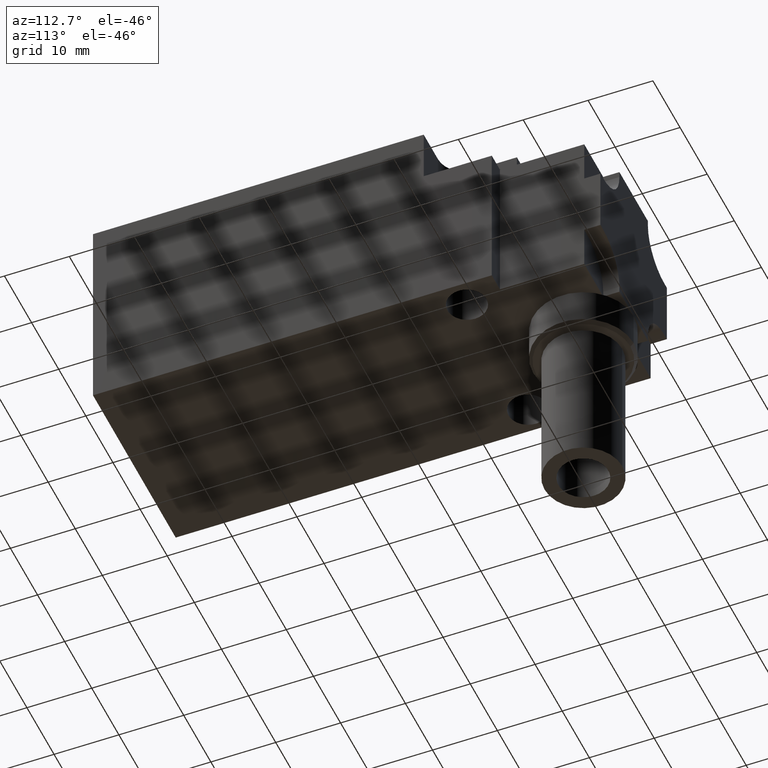
[diagram: clean part render]
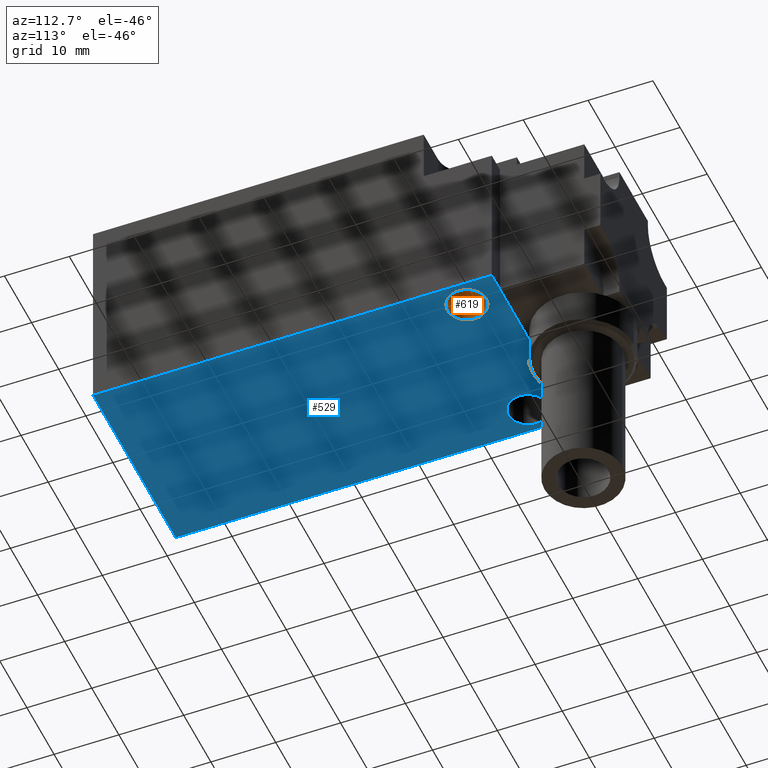
[diagram: same view with the hole feature highlighted: cylindrical wall and planar end face, labeled with their STEP entity ids]
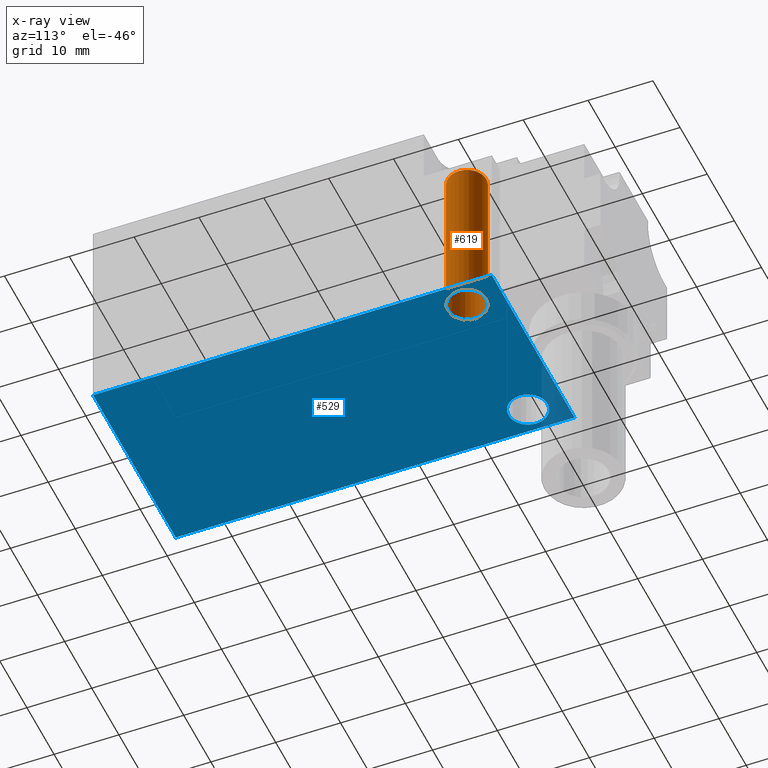
[diagram: x-ray of the same camera — body ghosted, the hole faces saturated]
A machine part, auxiliary view. The highlighted faces form one hole feature of diameter 6 mm: the cylindrical wall (entity #619, orange) and its adjacent planar end face (entity #529, blue) — they share a circular edge in the B-rep.
The next image is the same camera in x-ray (body ghosted, the hole faces saturated) — the bore reads through the body.
Wall:
#509=CARTESIAN_POINT('',(8.249999999966590,-13.249999999946795,0.0));
#510=VERTEX_POINT('',#509);
#511=CARTESIAN_POINT('',(14.249999999942602,-13.249999999946795,0.0));
#512=VERTEX_POINT('',#511);
#513=CARTESIAN_POINT('',(11.249999999954596,-13.249999999946795,0.0));
#514=DIRECTION('',(0.0,0.0,-1.0));
#515=DIRECTION('',(1.0,0.0,0.0));
#516=AXIS2_PLACEMENT_3D('',#513,#514,#515);
#517=CIRCLE('',#516,2.999999999988006);
#518=EDGE_CURVE('',#510,#512,#517,.T.);
#520=CARTESIAN_POINT('',(11.249999999954596,-13.249999999946795,0.0));
#521=DIRECTION('',(0.0,0.0,-1.0));
#522=DIRECTION('',(1.0,0.0,0.0));
#523=AXIS2_PLACEMENT_3D('',#520,#521,#522);
#524=CIRCLE('',#523,2.999999999988006);
#525=EDGE_CURVE('',#512,#510,#524,.T.);
#561=CARTESIAN_POINT('',(8.249999999966590,-13.249999999946795,24.499999999902048));
#562=VERTEX_POINT('',#561);
#563=CARTESIAN_POINT('',(14.249999999942602,-13.249999999946795,24.499999999902048));
#564=VERTEX_POINT('',#563);
#565=CARTESIAN_POINT('',(11.249999999954596,-13.249999999946795,24.499999999902048));
#566=DIRECTION('',(0.0,0.0,1.0));
#567=DIRECTION('',(1.0,0.0,0.0));
#568=AXIS2_PLACEMENT_3D('',#565,#566,#567);
#569=CIRCLE('',#568,2.999999999988006);
#570=EDGE_CURVE('',#562,#564,#569,.T.);
#572=CARTESIAN_POINT('',(11.249999999954596,-13.249999999946795,24.499999999902048));
#573=DIRECTION('',(0.0,0.0,1.0));
#574=DIRECTION('',(1.0,0.0,0.0));
#575=AXIS2_PLACEMENT_3D('',#572,#573,#574);
#576=CIRCLE('',#575,2.999999999988006);
#577=EDGE_CURVE('',#564,#562,#576,.T.);
#601=CARTESIAN_POINT('',(11.249999999954596,-13.249999999946795,24.499999999902048));
#602=DIRECTION('',(0.0,0.0,1.0));
#603=DIRECTION('',(1.0,0.0,0.0));
#604=AXIS2_PLACEMENT_3D('',#601,#602,#603);
#605=CYLINDRICAL_SURFACE('',#604,2.999999999988006);
#606=CARTESIAN_POINT('',(14.249999999942602,-13.249999999946795,24.499999999902048));
#607=DIRECTION('',(0.0,0.0,-1.0));
#608=VECTOR('',#607,24.499999999902048);
#609=LINE('',#606,#608);
#610=EDGE_CURVE('',#564,#512,#609,.T.);
#611=ORIENTED_EDGE('',*,*,#610,.T.);
#612=ORIENTED_EDGE('',*,*,#525,.T.);
#613=ORIENTED_EDGE('',*,*,#518,.T.);
#614=ORIENTED_EDGE('',*,*,#610,.F.);
#615=ORIENTED_EDGE('',*,*,#577,.T.);
#616=ORIENTED_EDGE('',*,*,#570,.T.);
#617=EDGE_LOOP('',(#611,#612,#613,#614,#615,#616));
#618=FACE_OUTER_BOUND('',#617,.T.);
#619=ADVANCED_FACE('',(#618),#605,.F.);
End face:
#359=CARTESIAN_POINT('',(15.249999999938964,-69.249999999723059,0.0));
#360=VERTEX_POINT('',#359);
#361=CARTESIAN_POINT('',(15.249999999938964,-7.749999999969077,0.0));
#362=VERTEX_POINT('',#361);
#363=CARTESIAN_POINT('',(15.249999999938964,-69.249999999723059,0.0));
#364=DIRECTION('',(0.0,1.0,0.0));
#365=VECTOR('',#364,61.499999999753982);
#366=LINE('',#363,#365);
#367=EDGE_CURVE('',#360,#362,#366,.T.);
#399=CARTESIAN_POINT('',(-15.249999999938993,-7.749999999969077,0.0));
#400=VERTEX_POINT('',#399);
#401=CARTESIAN_POINT('',(15.249999999938964,-7.749999999969077,0.0));
#402=DIRECTION('',(-1.0,0.0,0.0));
#403=VECTOR('',#402,30.499999999877957);
#404=LINE('',#401,#403);
#405=EDGE_CURVE('',#362,#400,#404,.T.);
#430=CARTESIAN_POINT('',(-15.249999999938993,-69.249999999723059,0.0));
#431=VERTEX_POINT('',#430);
#432=CARTESIAN_POINT('',(-15.249999999938993,-7.749999999969077,0.0));
#433=DIRECTION('',(0.0,-1.0,0.0));
#434=VECTOR('',#433,61.499999999753982);
#435=LINE('',#432,#434);
#436=EDGE_CURVE('',#400,#431,#435,.T.);
#461=CARTESIAN_POINT('',(-15.249999999938993,-69.249999999723059,0.0));
#462=DIRECTION('',(1.0,0.0,0.0));
#463=VECTOR('',#462,30.499999999877957);
#464=LINE('',#461,#463);
#465=EDGE_CURVE('',#431,#360,#464,.T.);
#478=CARTESIAN_POINT('',(-18.300004724687000,-75.400004724428015,0.0));
#479=DIRECTION('',(0.0,0.0,1.0));
#480=DIRECTION('',(1.0,0.0,0.0));
#481=AXIS2_PLACEMENT_3D('',#478,#479,#480);
#482=PLANE('',#481);
#483=ORIENTED_EDGE('',*,*,#465,.F.);
#484=ORIENTED_EDGE('',*,*,#436,.F.);
#485=ORIENTED_EDGE('',*,*,#405,.F.);
#486=ORIENTED_EDGE('',*,*,#367,.F.);
#487=EDGE_LOOP('',(#483,#484,#485,#486));
#488=FACE_OUTER_BOUND('',#487,.T.);
#489=CARTESIAN_POINT('',(-14.249999999943370,-13.249999999946795,0.0));
#490=VERTEX_POINT('',#489);
#491=CARTESIAN_POINT('',(-8.249999999967358,-13.249999999946795,0.0));
#492=VERTEX_POINT('',#491);
#493=CARTESIAN_POINT('',(-11.249999999955364,-13.249999999946795,0.0));
#494=DIRECTION('',(0.0,0.0,-1.0));
#495=DIRECTION('',(1.0,0.0,0.0));
#496=AXIS2_PLACEMENT_3D('',#493,#494,#495);
#497=CIRCLE('',#496,2.999999999988006);
#498=EDGE_CURVE('',#490,#492,#497,.T.);
#499=ORIENTED_EDGE('',*,*,#498,.F.);
#500=CARTESIAN_POINT('',(-11.249999999955364,-13.249999999946795,0.0));
#501=DIRECTION('',(0.0,0.0,-1.0));
#502=DIRECTION('',(1.0,0.0,0.0));
#503=AXIS2_PLACEMENT_3D('',#500,#501,#502);
#504=CIRCLE('',#503,2.999999999988006);
#505=EDGE_CURVE('',#492,#490,#504,.T.);
#506=ORIENTED_EDGE('',*,*,#505,.F.);
#507=EDGE_LOOP('',(#499,#506));
#508=FACE_BOUND('',#507,.T.);
#509=CARTESIAN_POINT('',(8.249999999966590,-13.249999999946795,0.0));
#510=VERTEX_POINT('',#509);
#511=CARTESIAN_POINT('',(14.249999999942602,-13.249999999946795,0.0));
#512=VERTEX_POINT('',#511);
#513=CARTESIAN_POINT('',(11.249999999954596,-13.249999999946795,0.0));
#514=DIRECTION('',(0.0,0.0,-1.0));
#515=DIRECTION('',(1.0,0.0,0.0));
#516=AXIS2_PLACEMENT_3D('',#513,#514,#515);
#517=CIRCLE('',#516,2.999999999988006);
#518=EDGE_CURVE('',#510,#512,#517,.T.);
#519=ORIENTED_EDGE('',*,*,#518,.F.);
#520=CARTESIAN_POINT('',(11.249999999954596,-13.249999999946795,0.0));
#521=DIRECTION('',(0.0,0.0,-1.0));
#522=DIRECTION('',(1.0,0.0,0.0));
#523=AXIS2_PLACEMENT_3D('',#520,#521,#522);
#524=CIRCLE('',#523,2.999999999988006);
#525=EDGE_CURVE('',#512,#510,#524,.T.);
#526=ORIENTED_EDGE('',*,*,#525,.F.);
#527=EDGE_LOOP('',(#519,#526));
#528=FACE_BOUND('',#527,.T.);
#529=ADVANCED_FACE('',(#488,#508,#528),#482,.F.);